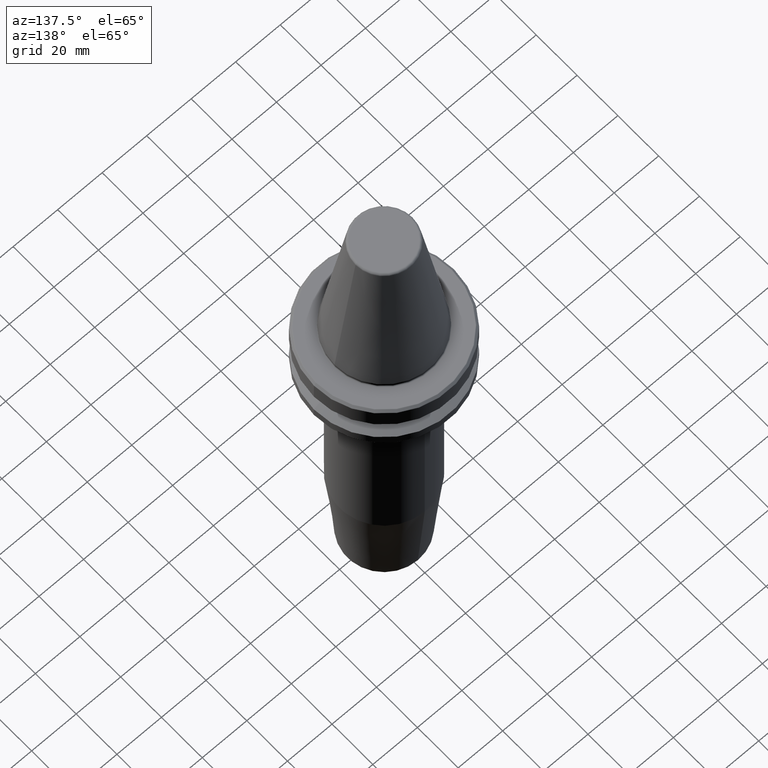
[diagram: clean part render]
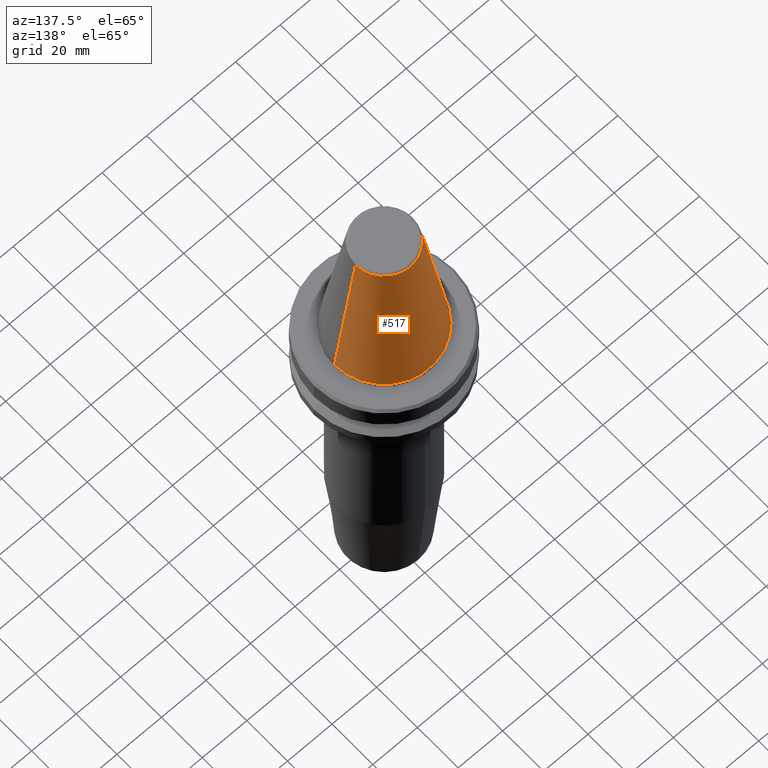
[diagram: same view with one face highlighted and labeled with its STEP entity id]
A machine part, auxiliary view. The second image highlights one B-rep face of the part: STEP entity #517.
In plain terms, the highlighted conical surface has half-angle 8.297 deg.
Its self-contained STEP definition (entity closure, byte-faithful):
#25 = CARTESIAN_POINT ( 'NONE',  ( 12.81219950706224800, 2.145409711370550300E-015, 64.54430822726730800 ) ) ;
#31 = LINE ( 'NONE', #1068, #1046 ) ;
#75 = DIRECTION ( 'NONE',  ( 1.000000000000000000, 0.0000000000000000000, 0.0000000000000000000 ) ) ;
#115 = CARTESIAN_POINT ( 'NONE',  ( -12.81219950706224800, 0.0000000000000000000, 64.54430822726730800 ) ) ;
#123 = VERTEX_POINT ( 'NONE', #545 ) ;
#240 = CIRCLE ( 'NONE', #821, 12.81219950706224800 ) ;
#279 = CARTESIAN_POINT ( 'NONE',  ( 0.0000000000000000000, 0.0000000000000000000, 0.0000000000000000000 ) ) ;
#363 = VECTOR ( 'NONE', #602, 1000.000000000000000 ) ;
#435 = CONICAL_SURFACE ( 'NONE', #555, 12.81219950706224800, 0.1448138465474191100 ) ;
#503 = ORIENTED_EDGE ( 'NONE', *, *, #895, .F. ) ;
#517 = ADVANCED_FACE ( 'NONE', ( #694 ), #435, .T. ) ;
#520 = CARTESIAN_POINT ( 'NONE',  ( 0.0000000000000000000, 0.0000000000000000000, 64.54430822726730800 ) ) ;
#542 = ORIENTED_EDGE ( 'NONE', *, *, #567, .F. ) ;
#545 = CARTESIAN_POINT ( 'NONE',  ( 22.22500000000000500, 0.0000000000000000000, 0.0000000000000000000 ) ) ;
#555 = AXIS2_PLACEMENT_3D ( 'NONE', #520, #1050, #615 ) ;
#567 = EDGE_CURVE ( 'NONE', #624, #1145, #240, .T. ) ;
#602 = DIRECTION ( 'NONE',  ( -0.1443082272673071000, 0.0000000000000000000, -0.9895327864921743500 ) ) ;
#605 = CIRCLE ( 'NONE', #893, 22.22500000000000500 ) ;
#615 = DIRECTION ( 'NONE',  ( -1.000000000000000000, 0.0000000000000000000, 0.0000000000000000000 ) ) ;
#620 = DIRECTION ( 'NONE',  ( -0.0000000000000000000, -0.0000000000000000000, 1.000000000000000000 ) ) ;
#621 = LINE ( 'NONE', #982, #363 ) ;
#624 = VERTEX_POINT ( 'NONE', #25 ) ;
#660 = DIRECTION ( 'NONE',  ( 0.1443082272673071000, 1.767266086135364600E-017, -0.9895327864921743500 ) ) ;
#694 = FACE_OUTER_BOUND ( 'NONE', #818, .T. ) ;
#818 = EDGE_LOOP ( 'NONE', ( #542, #1189, #1040, #503 ) ) ;
#821 = AXIS2_PLACEMENT_3D ( 'NONE', #1205, #620, #1218 ) ;
#893 = AXIS2_PLACEMENT_3D ( 'NONE', #279, #1060, #75 ) ;
#895 = EDGE_CURVE ( 'NONE', #1145, #1155, #621, .T. ) ;
#947 = EDGE_CURVE ( 'NONE', #624, #123, #31, .T. ) ;
#982 = CARTESIAN_POINT ( 'NONE',  ( -12.81219950706224800, 0.0000000000000000000, 64.54430822726730800 ) ) ;
#1001 = CARTESIAN_POINT ( 'NONE',  ( -22.22500000000000500, 2.721777511104993200E-015, 0.0000000000000000000 ) ) ;
#1040 = ORIENTED_EDGE ( 'NONE', *, *, #1129, .T. ) ;
#1046 = VECTOR ( 'NONE', #660, 1000.000000000000000 ) ;
#1050 = DIRECTION ( 'NONE',  ( 0.0000000000000000000, 0.0000000000000000000, -1.000000000000000000 ) ) ;
#1060 = DIRECTION ( 'NONE',  ( -0.0000000000000000000, -0.0000000000000000000, 1.000000000000000000 ) ) ;
#1068 = CARTESIAN_POINT ( 'NONE',  ( 12.81219950706224800, 1.569041911636107800E-015, 64.54430822726730800 ) ) ;
#1129 = EDGE_CURVE ( 'NONE', #123, #1155, #605, .T. ) ;
#1145 = VERTEX_POINT ( 'NONE', #115 ) ;
#1155 = VERTEX_POINT ( 'NONE', #1001 ) ;
#1189 = ORIENTED_EDGE ( 'NONE', *, *, #947, .T. ) ;
#1205 = CARTESIAN_POINT ( 'NONE',  ( 0.0000000000000000000, 0.0000000000000000000, 64.54430822726730800 ) ) ;
#1218 = DIRECTION ( 'NONE',  ( 1.000000000000000000, 0.0000000000000000000, 0.0000000000000000000 ) ) ;